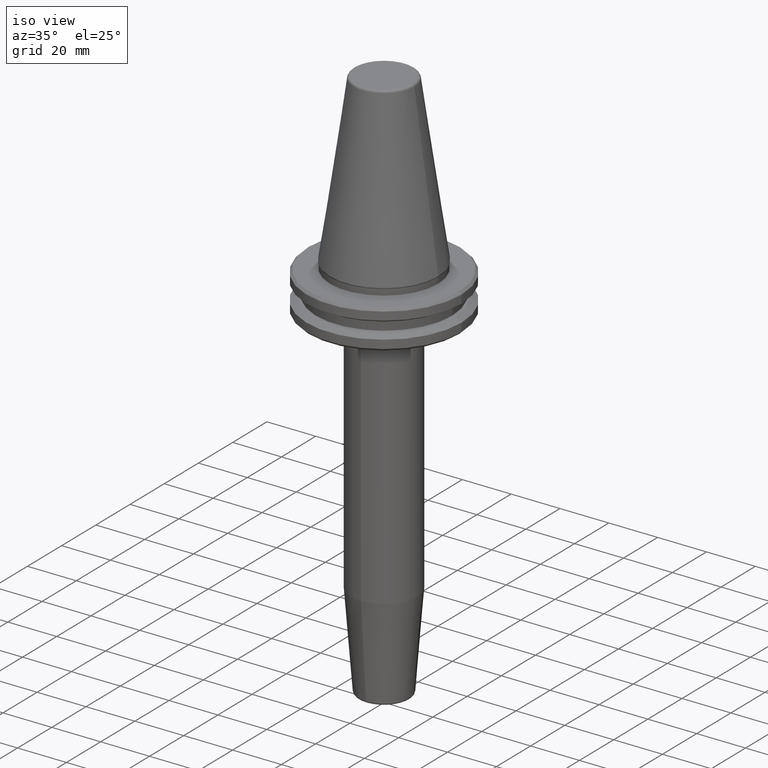
[diagram: clean part render]
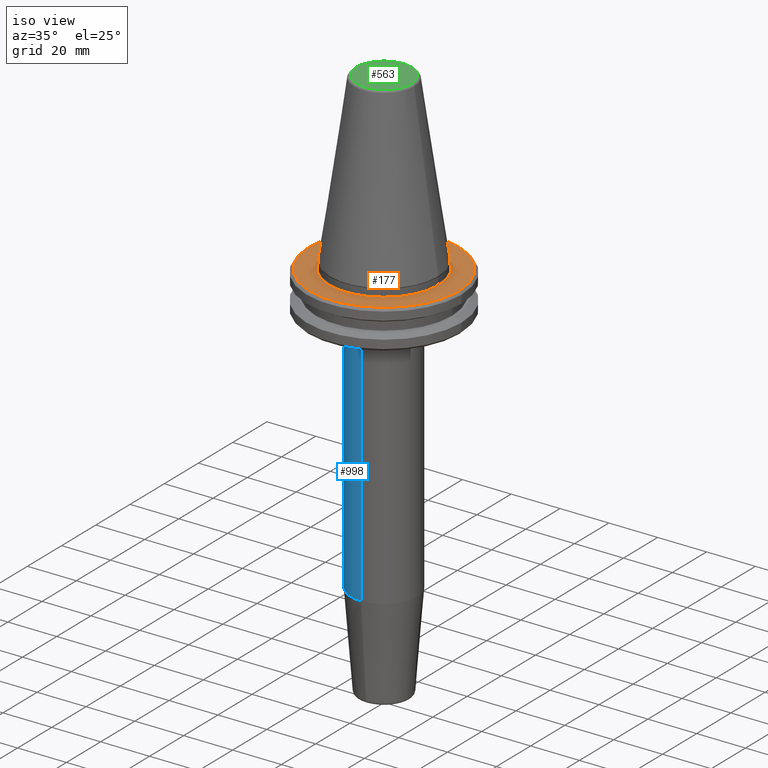
[diagram: same view with three faces highlighted in distinct colors, each labeled with its STEP entity id]
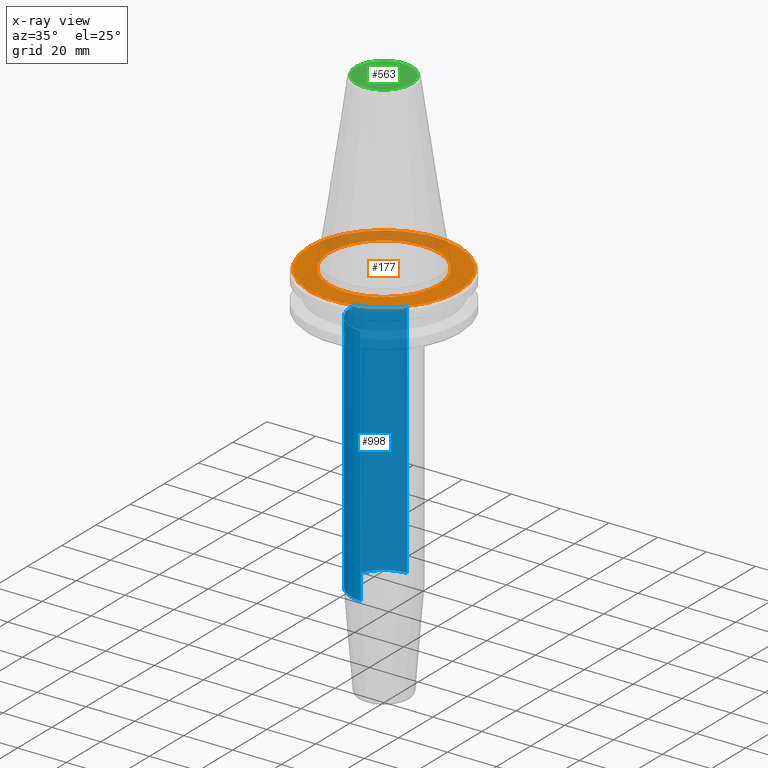
[diagram: x-ray of the same camera — body ghosted, the three highlighted faces saturated]
A machine part, iso view with three faces highlighted in distinct colors.
The next image is the same camera in x-ray (body ghosted, the three faces saturated) — at least one of them is partly hidden behind the body in this view.
Their STEP definitions:

[orange] entity #177 — the highlighted planar face has unit normal (0, -0, 1).
#13 = VERTEX_POINT ( 'NONE', #1235 ) ;
#58 = ORIENTED_EDGE ( 'NONE', *, *, #372, .T. ) ;
#78 = CARTESIAN_POINT ( 'NONE',  ( 0.0000000000000000000, 0.0000000000000000000, -3.200000000000000200 ) ) ;
#125 = EDGE_LOOP ( 'NONE', ( #1045, #58 ) ) ;
#131 = DIRECTION ( 'NONE',  ( 1.000000000000000000, 0.0000000000000000000, 0.0000000000000000000 ) ) ;
#144 = AXIS2_PLACEMENT_3D ( 'NONE', #799, #892, #1079 ) ;
#177 = ADVANCED_FACE ( 'NONE', ( #959, #900 ), #572, .T. ) ;
#262 = CIRCLE ( 'NONE', #1122, 30.58431457505076200 ) ;
#326 = EDGE_LOOP ( 'NONE', ( #710, #598 ) ) ;
#348 = CIRCLE ( 'NONE', #504, 22.50000000000000000 ) ;
#372 = EDGE_CURVE ( 'NONE', #13, #1217, #262, .T. ) ;
#412 = CIRCLE ( 'NONE', #144, 30.58431457505076200 ) ;
#424 = CARTESIAN_POINT ( 'NONE',  ( 30.58431457505076200, 0.0000000000000000000, -3.199999999999994400 ) ) ;
#504 = AXIS2_PLACEMENT_3D ( 'NONE', #745, #1238, #1033 ) ;
#572 = PLANE ( 'NONE',  #964 ) ;
#598 = ORIENTED_EDGE ( 'NONE', *, *, #800, .F. ) ;
#655 = CIRCLE ( 'NONE', #827, 22.50000000000000000 ) ;
#710 = ORIENTED_EDGE ( 'NONE', *, *, #748, .F. ) ;
#728 = EDGE_CURVE ( 'NONE', #1217, #13, #412, .T. ) ;
#733 = DIRECTION ( 'NONE',  ( 1.000000000000000000, 0.0000000000000000000, 0.0000000000000000000 ) ) ;
#745 = CARTESIAN_POINT ( 'NONE',  ( 0.0000000000000000000, 0.0000000000000000000, -3.199999999999994400 ) ) ;
#748 = EDGE_CURVE ( 'NONE', #761, #1154, #655, .T. ) ;
#761 = VERTEX_POINT ( 'NONE', #1011 ) ;
#799 = CARTESIAN_POINT ( 'NONE',  ( 0.0000000000000000000, 0.0000000000000000000, -3.199999999999994400 ) ) ;
#800 = EDGE_CURVE ( 'NONE', #1154, #761, #348, .T. ) ;
#827 = AXIS2_PLACEMENT_3D ( 'NONE', #1105, #928, #1209 ) ;
#892 = DIRECTION ( 'NONE',  ( -0.0000000000000000000, -0.0000000000000000000, 1.000000000000000000 ) ) ;
#900 = FACE_BOUND ( 'NONE', #326, .T. ) ;
#912 = DIRECTION ( 'NONE',  ( -0.0000000000000000000, -0.0000000000000000000, 1.000000000000000000 ) ) ;
#928 = DIRECTION ( 'NONE',  ( -0.0000000000000000000, -0.0000000000000000000, 1.000000000000000000 ) ) ;
#959 = FACE_OUTER_BOUND ( 'NONE', #125, .T. ) ;
#964 = AXIS2_PLACEMENT_3D ( 'NONE', #78, #1023, #733 ) ;
#1011 = CARTESIAN_POINT ( 'NONE',  ( 22.50000000000000000, 0.0000000000000000000, -3.199999999999996600 ) ) ;
#1023 = DIRECTION ( 'NONE',  ( 0.0000000000000000000, -0.0000000000000000000, 1.000000000000000000 ) ) ;
#1033 = DIRECTION ( 'NONE',  ( 1.000000000000000000, 0.0000000000000000000, 0.0000000000000000000 ) ) ;
#1045 = ORIENTED_EDGE ( 'NONE', *, *, #728, .T. ) ;
#1079 = DIRECTION ( 'NONE',  ( 1.000000000000000000, 0.0000000000000000000, 0.0000000000000000000 ) ) ;
#1105 = CARTESIAN_POINT ( 'NONE',  ( 0.0000000000000000000, 0.0000000000000000000, -3.199999999999994400 ) ) ;
#1122 = AXIS2_PLACEMENT_3D ( 'NONE', #1197, #912, #131 ) ;
#1154 = VERTEX_POINT ( 'NONE', #1240 ) ;
#1197 = CARTESIAN_POINT ( 'NONE',  ( 0.0000000000000000000, 0.0000000000000000000, -3.199999999999994400 ) ) ;
#1209 = DIRECTION ( 'NONE',  ( 1.000000000000000000, 0.0000000000000000000, 0.0000000000000000000 ) ) ;
#1217 = VERTEX_POINT ( 'NONE', #424 ) ;
#1235 = CARTESIAN_POINT ( 'NONE',  ( -30.58431457505076200, 3.762817415969875600E-015, -3.199999999999994400 ) ) ;
#1238 = DIRECTION ( 'NONE',  ( -0.0000000000000000000, -0.0000000000000000000, 1.000000000000000000 ) ) ;
#1240 = CARTESIAN_POINT ( 'NONE',  ( -22.50000000000000000, 2.755455298081544800E-015, -3.199999999999996600 ) ) ;

[blue] entity #998 — the highlighted cylindrical surface (partial cylindrical patch) has radius 13.5 mm, axis along (-0, 0, -1).
#7 = CARTESIAN_POINT ( 'NONE',  ( 0.0000000000000000000, -4.457938172501148500E-015, -120.9598448871996500 ) ) ;
#18 = CARTESIAN_POINT ( 'NONE',  ( 0.0000000000000000000, 4.467959865220142400E-016, -160.0000000000000000 ) ) ;
#36 = LINE ( 'NONE', #699, #271 ) ;
#59 = VERTEX_POINT ( 'NONE', #599 ) ;
#60 = ORIENTED_EDGE ( 'NONE', *, *, #1232, .T. ) ;
#81 = DIRECTION ( 'NONE',  ( 0.0000000000000000000, 1.000000000000000000, 0.0000000000000000000 ) ) ;
#101 = DIRECTION ( 'NONE',  ( -0.0000000000000000000, 1.256330602389183300E-016, -1.000000000000000000 ) ) ;
#107 = DIRECTION ( 'NONE',  ( 0.0000000000000000000, 1.000000000000000000, 0.0000000000000000000 ) ) ;
#201 = CARTESIAN_POINT ( 'NONE',  ( 0.0000000000000000000, 13.50000000000000000, -20.98284271247460700 ) ) ;
#248 = AXIS2_PLACEMENT_3D ( 'NONE', #7, #101, #107 ) ;
#271 = VECTOR ( 'NONE', #1081, 1000.000000000000000 ) ;
#341 = EDGE_LOOP ( 'NONE', ( #763, #1150, #60, #408 ) ) ;
#408 = ORIENTED_EDGE ( 'NONE', *, *, #588, .F. ) ;
#467 = AXIS2_PLACEMENT_3D ( 'NONE', #18, #1076, #690 ) ;
#588 = EDGE_CURVE ( 'NONE', #702, #1216, #1060, .T. ) ;
#599 = CARTESIAN_POINT ( 'NONE',  ( 1.653273178848929800E-015, -13.50000000000003400, -20.98284271247460700 ) ) ;
#609 = CARTESIAN_POINT ( 'NONE',  ( 1.653273178848927500E-015, 13.50000000000000000, -120.9598448871996500 ) ) ;
#652 = DIRECTION ( 'NONE',  ( -0.0000000000000000000, 1.256330602389183300E-016, -1.000000000000000000 ) ) ;
#690 = DIRECTION ( 'NONE',  ( 0.0000000000000000000, 1.000000000000000000, 0.0000000000000000000 ) ) ;
#699 = CARTESIAN_POINT ( 'NONE',  ( 0.0000000000000000000, 13.50000000000001200, -160.0000000000000000 ) ) ;
#702 = VERTEX_POINT ( 'NONE', #884 ) ;
#763 = ORIENTED_EDGE ( 'NONE', *, *, #856, .F. ) ;
#826 = CARTESIAN_POINT ( 'NONE',  ( 1.653273178848928400E-015, -13.50000000000001200, -160.0000000000000000 ) ) ;
#851 = VERTEX_POINT ( 'NONE', #201 ) ;
#856 = EDGE_CURVE ( 'NONE', #59, #702, #1256, .T. ) ;
#870 = AXIS2_PLACEMENT_3D ( 'NONE', #1244, #652, #81 ) ;
#884 = CARTESIAN_POINT ( 'NONE',  ( 0.0000000000000000000, -13.50000000000001100, -120.9598448871996500 ) ) ;
#905 = FACE_OUTER_BOUND ( 'NONE', #341, .T. ) ;
#993 = VECTOR ( 'NONE', #1056, 1000.000000000000000 ) ;
#998 = ADVANCED_FACE ( 'NONE', ( #905 ), #1090, .T. ) ;
#1056 = DIRECTION ( 'NONE',  ( -0.0000000000000000000, 1.256330602389183300E-016, -1.000000000000000000 ) ) ;
#1057 = CIRCLE ( 'NONE', #870, 13.50000000000001800 ) ;
#1060 = CIRCLE ( 'NONE', #248, 13.50000000000000500 ) ;
#1076 = DIRECTION ( 'NONE',  ( -0.0000000000000000000, 1.256330602389183300E-016, -1.000000000000000000 ) ) ;
#1081 = DIRECTION ( 'NONE',  ( -0.0000000000000000000, 1.256330602389183300E-016, -1.000000000000000000 ) ) ;
#1090 = CYLINDRICAL_SURFACE ( 'NONE', #467, 13.50000000000001200 ) ;
#1150 = ORIENTED_EDGE ( 'NONE', *, *, #1187, .T. ) ;
#1187 = EDGE_CURVE ( 'NONE', #59, #851, #1057, .T. ) ;
#1216 = VERTEX_POINT ( 'NONE', #609 ) ;
#1232 = EDGE_CURVE ( 'NONE', #851, #1216, #36, .T. ) ;
#1244 = CARTESIAN_POINT ( 'NONE',  ( 0.0000000000000000000, -1.701835490922485000E-014, -20.98284271247460700 ) ) ;
#1256 = LINE ( 'NONE', #826, #993 ) ;

[green] entity #563 — the highlighted planar face has unit normal (0, -0, 1).
#57 = CARTESIAN_POINT ( 'NONE',  ( 11.38516258961893100, 0.0000000000000000000, 68.40000000000000600 ) ) ;
#110 = DIRECTION ( 'NONE',  ( 0.0000000000000000000, -0.0000000000000000000, 1.000000000000000000 ) ) ;
#139 = DIRECTION ( 'NONE',  ( -0.0000000000000000000, -0.0000000000000000000, 1.000000000000000000 ) ) ;
#154 = VERTEX_POINT ( 'NONE', #57 ) ;
#163 = CARTESIAN_POINT ( 'NONE',  ( 0.0000000000000000000, 0.0000000000000000000, 68.40000000000000600 ) ) ;
#263 = DIRECTION ( 'NONE',  ( 1.000000000000000000, 0.0000000000000000000, 0.0000000000000000000 ) ) ;
#334 = FACE_OUTER_BOUND ( 'NONE', #519, .T. ) ;
#354 = AXIS2_PLACEMENT_3D ( 'NONE', #535, #139, #1087 ) ;
#415 = EDGE_CURVE ( 'NONE', #154, #1066, #1025, .T. ) ;
#500 = CARTESIAN_POINT ( 'NONE',  ( -11.38516258961893100, 1.454871700296352000E-015, 68.40000000000000600 ) ) ;
#519 = EDGE_LOOP ( 'NONE', ( #614, #977 ) ) ;
#535 = CARTESIAN_POINT ( 'NONE',  ( 0.0000000000000000000, 0.0000000000000000000, 68.40000000000000600 ) ) ;
#563 = ADVANCED_FACE ( 'NONE', ( #334 ), #980, .T. ) ;
#614 = ORIENTED_EDGE ( 'NONE', *, *, #415, .T. ) ;
#674 = AXIS2_PLACEMENT_3D ( 'NONE', #163, #837, #263 ) ;
#779 = DIRECTION ( 'NONE',  ( 1.000000000000000000, 0.0000000000000000000, 0.0000000000000000000 ) ) ;
#837 = DIRECTION ( 'NONE',  ( -0.0000000000000000000, -0.0000000000000000000, 1.000000000000000000 ) ) ;
#895 = AXIS2_PLACEMENT_3D ( 'NONE', #972, #110, #779 ) ;
#972 = CARTESIAN_POINT ( 'NONE',  ( 0.0000000000000000000, -8.337524199435086500E-014, 68.39999999999999100 ) ) ;
#977 = ORIENTED_EDGE ( 'NONE', *, *, #1071, .T. ) ;
#980 = PLANE ( 'NONE',  #895 ) ;
#1025 = CIRCLE ( 'NONE', #354, 11.38516258961893100 ) ;
#1066 = VERTEX_POINT ( 'NONE', #500 ) ;
#1071 = EDGE_CURVE ( 'NONE', #1066, #154, #1125, .T. ) ;
#1087 = DIRECTION ( 'NONE',  ( 1.000000000000000000, 0.0000000000000000000, 0.0000000000000000000 ) ) ;
#1125 = CIRCLE ( 'NONE', #674, 11.38516258961893100 ) ;